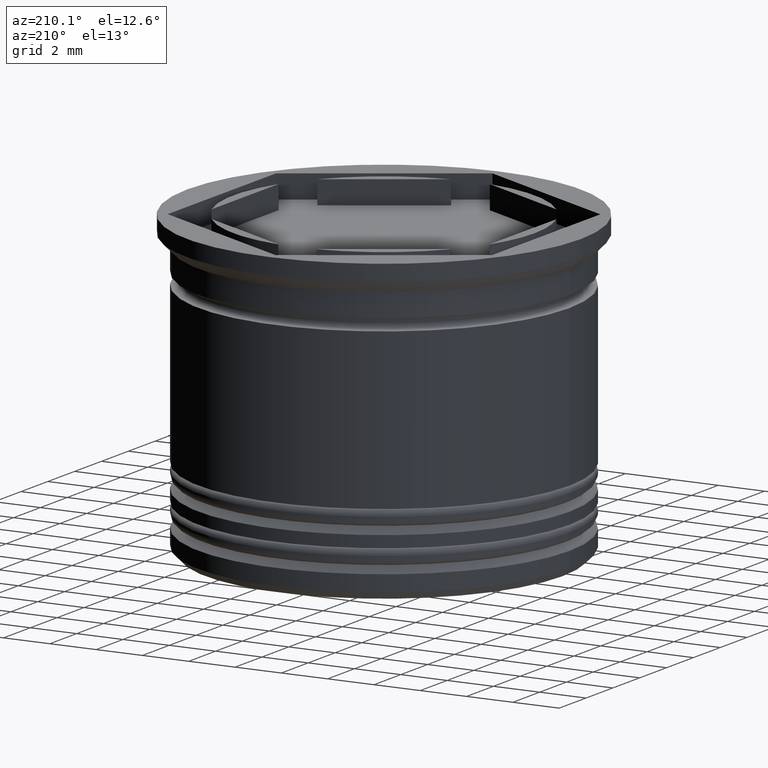
[diagram: clean part render]
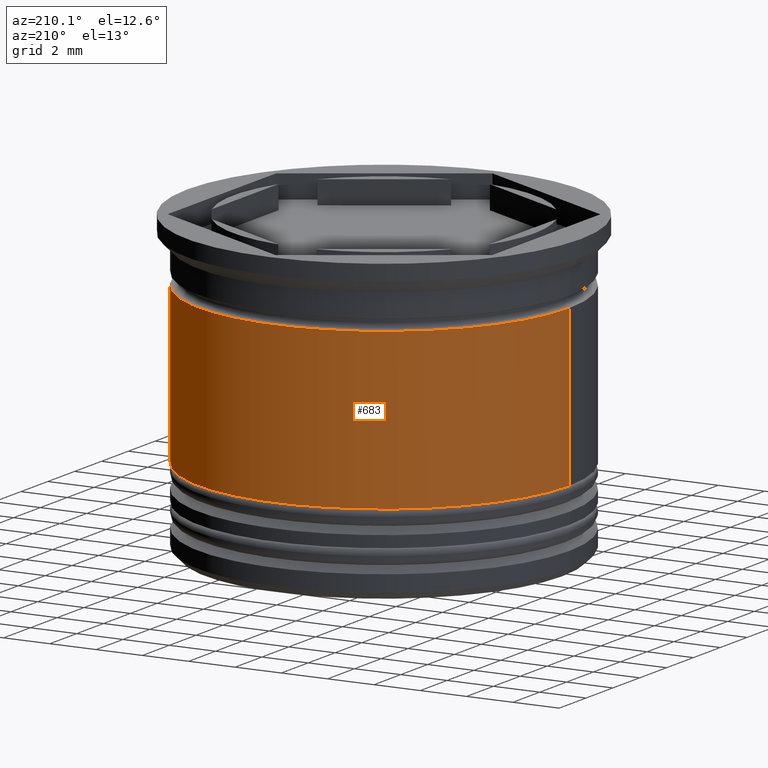
[diagram: same view with one face highlighted and labeled with its STEP entity id]
A machine part, auxiliary view. The second image highlights one B-rep face of the part: STEP entity #683.
In plain terms, the highlighted cylindrical surface (partial cylindrical patch) has radius 8 mm, axis along (-0, -0, 1).
Its self-contained STEP definition (entity closure, byte-faithful):
#53 = DIRECTION ( 'NONE',  ( -0.000000000000000000, -0.000000000000000000, 1.000000000000000000 ) ) ;
#71 = EDGE_CURVE ( 'NONE', #1656, #1557, #483, .T. ) ;
#81 = DIRECTION ( 'NONE',  ( -0.000000000000000000, -0.000000000000000000, 1.000000000000000000 ) ) ;
#218 = EDGE_CURVE ( 'NONE', #1656, #716, #1659, .T. ) ;
#425 = FACE_OUTER_BOUND ( 'NONE', #1497, .T. ) ;
#483 = LINE ( 'NONE', #1245, #1047 ) ;
#495 = DIRECTION ( 'NONE',  ( 1.000000000000000000, 0.000000000000000000, 0.000000000000000000 ) ) ;
#503 = ORIENTED_EDGE ( 'NONE', *, *, #622, .F. ) ;
#575 = AXIS2_PLACEMENT_3D ( 'NONE', #1487, #1761, #1321 ) ;
#604 = CARTESIAN_POINT ( 'NONE',  ( 0.000000000000000000, 0.000000000000000000, -9.500000000000000000 ) ) ;
#622 = EDGE_CURVE ( 'NONE', #1557, #1001, #1410, .T. ) ;
#627 = DIRECTION ( 'NONE',  ( -0.000000000000000000, -0.000000000000000000, 1.000000000000000000 ) ) ;
#644 = ORIENTED_EDGE ( 'NONE', *, *, #659, .T. ) ;
#659 = EDGE_CURVE ( 'NONE', #716, #1001, #1803, .T. ) ;
#683 = ADVANCED_FACE ( 'NONE', ( #425 ), #839, .T. ) ;
#716 = VERTEX_POINT ( 'NONE', #1308 ) ;
#735 = AXIS2_PLACEMENT_3D ( 'NONE', #1879, #53, #495 ) ;
#743 = ORIENTED_EDGE ( 'NONE', *, *, #71, .F. ) ;
#747 = ORIENTED_EDGE ( 'NONE', *, *, #218, .T. ) ;
#839 = CYLINDRICAL_SURFACE ( 'NONE', #575, 8.000000000000000000 ) ;
#889 = CARTESIAN_POINT ( 'NONE',  ( 8.000000000000001776, 0.000000000000000000, -9.500000000000000000 ) ) ;
#985 = VECTOR ( 'NONE', #81, 1000.000000000000000 ) ;
#1001 = VERTEX_POINT ( 'NONE', #1987 ) ;
#1047 = VECTOR ( 'NONE', #1860, 1000.000000000000000 ) ;
#1106 = AXIS2_PLACEMENT_3D ( 'NONE', #604, #627, #1671 ) ;
#1163 = CARTESIAN_POINT ( 'NONE',  ( 8.000000000000000000, 0.000000000000000000, -2.700000000000000178 ) ) ;
#1245 = CARTESIAN_POINT ( 'NONE',  ( 8.000000000000000000, 0.000000000000000000, 0.000000000000000000 ) ) ;
#1308 = CARTESIAN_POINT ( 'NONE',  ( -8.000000000000001776, 9.797174393178827630E-16, -9.500000000000000000 ) ) ;
#1321 = DIRECTION ( 'NONE',  ( 1.000000000000000000, 0.000000000000000000, 0.000000000000000000 ) ) ;
#1356 = CARTESIAN_POINT ( 'NONE',  ( -8.000000000000000000, 9.797174393178825657E-16, 0.000000000000000000 ) ) ;
#1410 = CIRCLE ( 'NONE', #735, 8.000000000000000000 ) ;
#1487 = CARTESIAN_POINT ( 'NONE',  ( 0.000000000000000000, 0.000000000000000000, 0.000000000000000000 ) ) ;
#1497 = EDGE_LOOP ( 'NONE', ( #747, #644, #503, #743 ) ) ;
#1557 = VERTEX_POINT ( 'NONE', #1163 ) ;
#1656 = VERTEX_POINT ( 'NONE', #889 ) ;
#1659 = CIRCLE ( 'NONE', #1106, 8.000000000000001776 ) ;
#1671 = DIRECTION ( 'NONE',  ( 1.000000000000000000, 0.000000000000000000, 0.000000000000000000 ) ) ;
#1761 = DIRECTION ( 'NONE',  ( -0.000000000000000000, -0.000000000000000000, 1.000000000000000000 ) ) ;
#1803 = LINE ( 'NONE', #1356, #985 ) ;
#1860 = DIRECTION ( 'NONE',  ( -0.000000000000000000, -0.000000000000000000, 1.000000000000000000 ) ) ;
#1879 = CARTESIAN_POINT ( 'NONE',  ( 0.000000000000000000, 0.000000000000000000, -2.700000000000000178 ) ) ;
#1987 = CARTESIAN_POINT ( 'NONE',  ( -8.000000000000000000, 9.797174393178825657E-16, -2.700000000000000178 ) ) ;